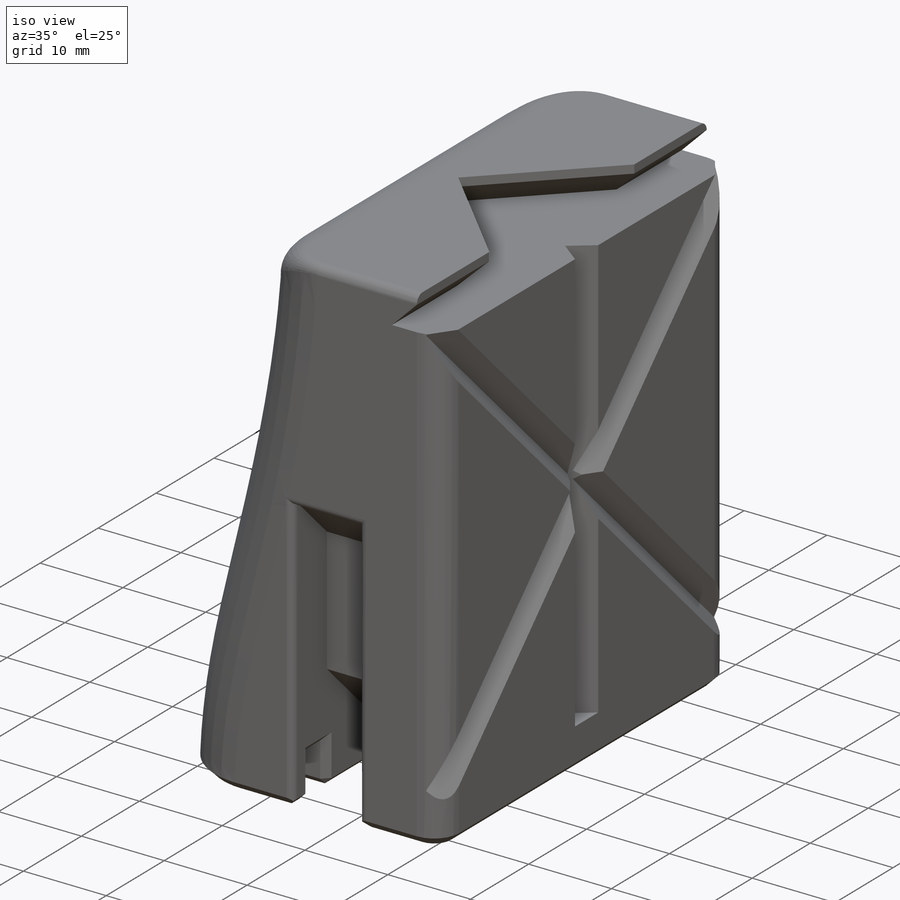
[diagram: iso view]
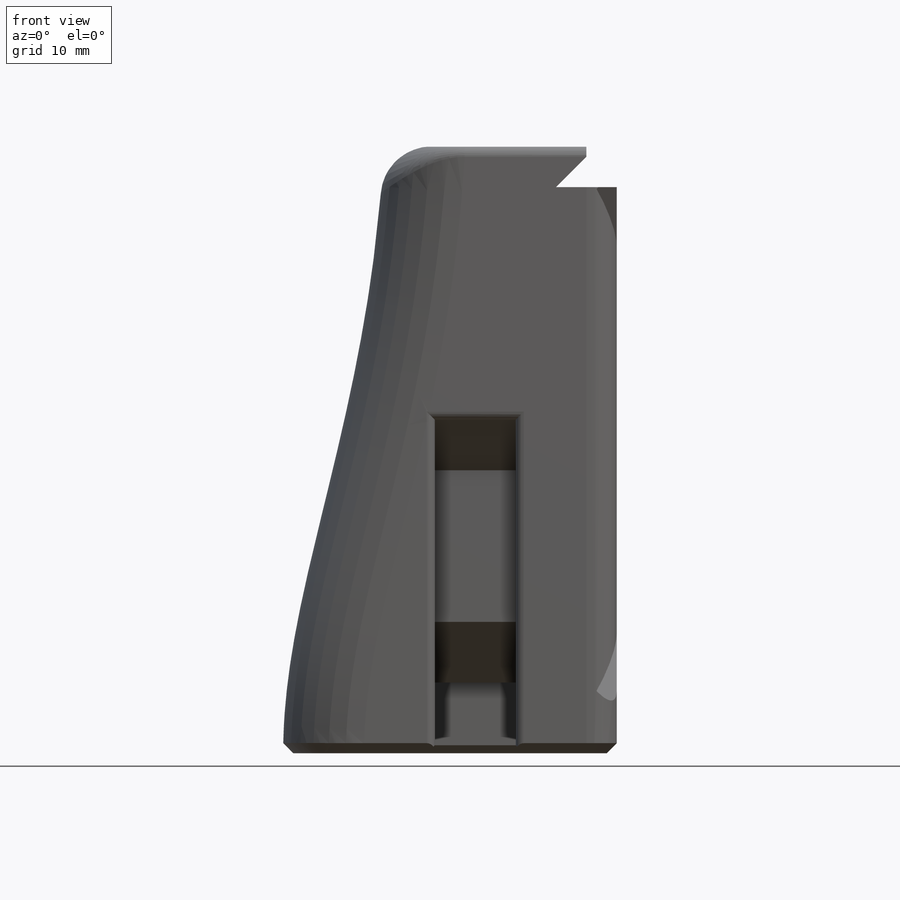
[diagram: front view]
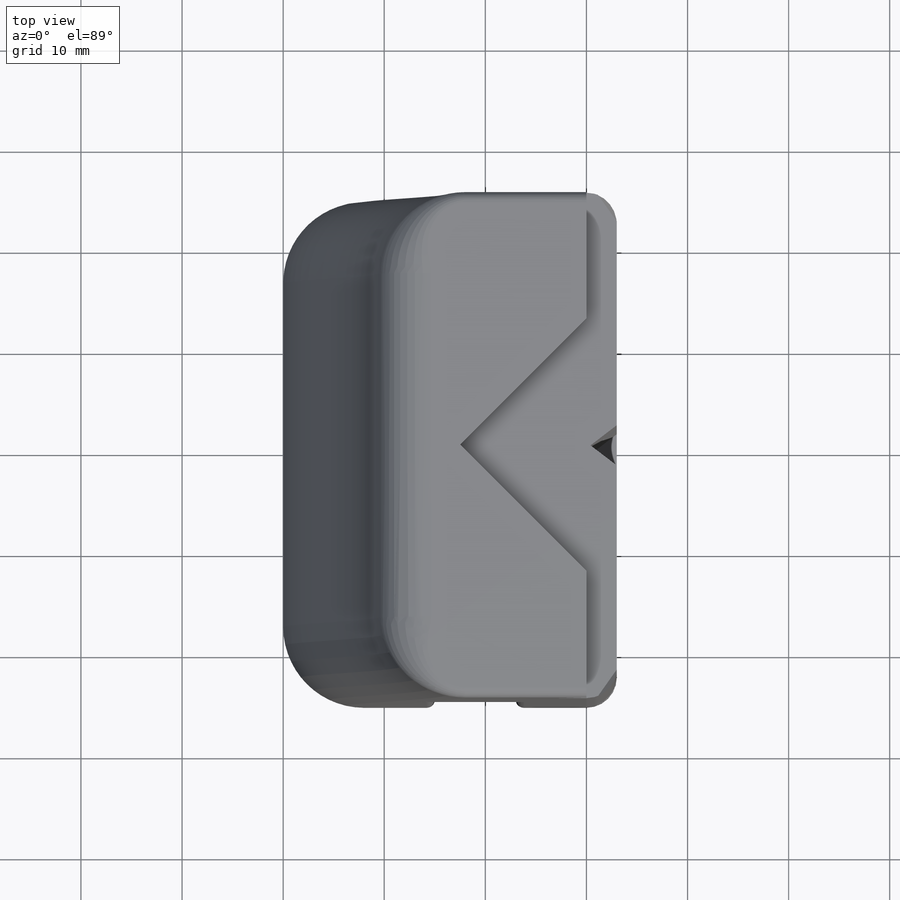
[diagram: top view]
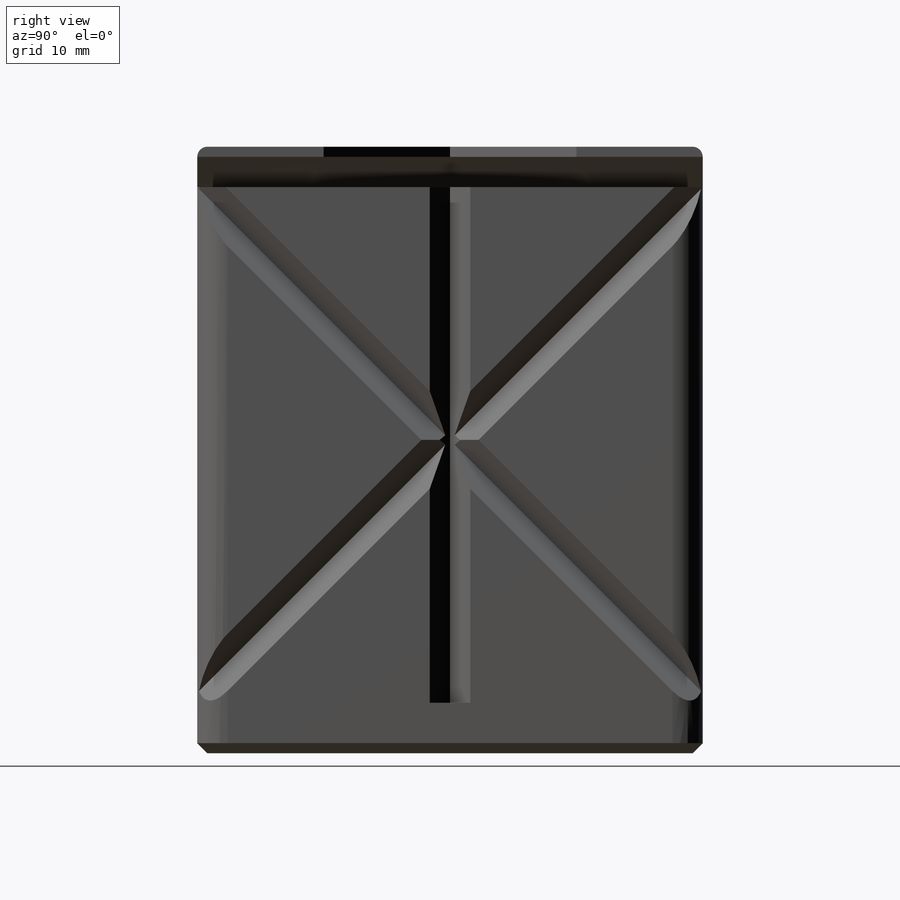
[diagram: right view]
SOLIDWORKS PART (.sldprt)
format: sldprt  version: not decoded by parser v0  size: 513,536 bytes
history: native  units: mm
features: sketch x10, cut_extrude x7, chamfer x5, fillet x3, plane x2, material x1, extrude x1, sweep x1, mirror x1 (+12 scaffold rows collapsed; 1 parser-record rows omitted)
feature tree (44):
  scaffold x12  (default folders/planes/origin — collapsed)
  material  "Material <not specified>"
  plane  "Plane2"  Offset=5mm
  sketch  "Sketch1"  dims[c1.D1=60.0mm c1.D2=20.0mm c1.D3=3.0mm c1.D4=~2.359409mm c2.D4=135.0deg c2.D5=6.0mm c2.D6=1.0mm c2.D7=10.0mm]
  extrude  "Boss-Extrude1"  Depth=25mm
  sketch  "Sketch2"  dims[c1.D1=~11.368681mm c2.D1=90.0deg c2.D2=25.0mm]
  cut_extrude  "Cut-Extrude1"  [1 undecoded]
  sketch  "Sketch3"  dims[D1=0.0mm]
  cut_extrude  "Cut-Extrude2"  [1 undecoded]
  fillet  "Fillet1"  Radius=3mm
  parser-record x1  (decoder bookkeeping rows leaked as tree rows — omitted from the tree; the rows remain in map.json)
  sketch  "Sketch4"  dims[c1.D1=4.0mm c1.D2=1.0mm c2.D2=50.0deg c3.D2=~1.191754mm c4.D2=75.0deg c4.D3=~1.954838mm]
  cut_extrude  "Cut-Extrude3"  [1 undecoded]
  sketch  "Sketch6"  dims[c1.D1=~84.052157mm c2.D1=45.0deg c2.D2=~92.988062mm c3.D2=45.0deg]
  plane  "Plane1"
  sketch  "Sketch7"  dims[c1.D1=~4.998846mm c2.D1=45.0deg c2.D2=4.0mm]
  sweep  "Cut-Sweep1"
  mirror  "Mirror1"
  fillet  "Fillet2"  Radius=8mm
  chamfer  "Chamfer1"  Distance=1mm Angle=45deg
  sketch  "Sketch8"  dims[D1=13.5mm D2=27.0mm D3=13.5mm]
  cut_extrude  "Cut-Extrude4"  Depth=6.5mm
  chamfer  "Chamfer2"  Distance=0.5mm Angle=45deg
  sketch  "Sketch9"  dims[D1=2.9mm D2=3.0mm D3=24.0mm]
  cut_extrude  "Cut-Extrude5"  Depth=5mm
  sketch  "Sketch10"  dims[D1=8.0mm D2=33.0mm]
  cut_extrude  "Cut-Extrude6"  Depth=5.9mm
  sketch  "Sketch11"  dims[D1=8.0mm D2=11.0mm]
  cut_extrude  "Cut-Extrude7"  Depth=7mm
  chamfer  "Chamfer3"  Distance=5mm Angle=45deg
  chamfer  "Chamfer4"  Distance=6mm Angle=45deg
  fillet  "Fillet4"  Radius=0.8mm
  chamfer  "Chamfer5"  Distance=0.8mm Angle=45deg
decode coverage: 23 of 28 modeling features carry decoded parameters
note: ~ marks probable driven/reference dimensions
note: 3 parameter values undecoded
summary: no parameter record found for 3 features
note: suppression state not decoded; provenance and decode notes live in map.json
